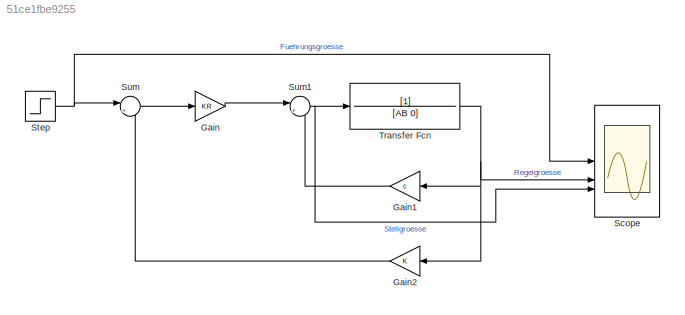
MODEL slx_51ce1fbe9255
KIND model
CONFIG AbsTol = auto
CONFIG EnableMultiTasking = off
CONFIG FixedStep = auto
CONFIG MaxStep = auto
CONFIG MinStep = auto
CONFIG RelTol = 1e-3
CONFIG SampleTimeConstraint = Unconstrained
CONFIG SolverName = VariableStepAuto
CONFIG StartTime = 0.0
CONFIG StopTime = 10.0
BLOCK [Gain] Gain
  Gain = KR
BLOCK [Gain] Gain1
  Gain = c
  NameLocation = top
BLOCK [Gain] Gain2
  NameLocation = top
BLOCK [Scope] Scope
  Floating = off
  NumInputPorts = 3
  ScopeSpecificationString = Simulink.scopes.TimeScopeBlockCfg('CurrentConfiguration', extmgr.ConfigurationSet(extmgr.Configuration('Core','General UI',true),extmgr.Configuration('Core','Source UI',true),extmgr.Configuration('Sources','WiredSimulink',true,'DataLogging',true,'DataLoggingSaveFormat','StructureWithTime'),extmgr.Configuration('Visuals','Time Domain',true,'SerializedDisplays',{struct('MinYLimReal','-10','MaxYLimRe...<+1383ch>
BLOCK [Step] Step
  After = 0
  Before = h
  SampleTime = 0
  Time = sim_time
BLOCK [Sum] Sum
  Inputs = |+-
BLOCK [Sum] Sum1
  Inputs = |+-
BLOCK [TransferFcn] Transfer Fcn
  Denominator = [AB 0]
LINE Gain1:1 -> Sum1:2
LINE Gain2:1 -> Sum:2
LINE Gain:1 -> Sum1:1
NET Step:1 -> Scope:1, Sum:1
NET Sum1:1 -> Scope:3, Transfer Fcn:1
LINE Sum:1 -> Gain:1
NET Transfer Fcn:1 -> Gain1:1, Gain2:1, Scope:2
note: NET lines group one-source signal fan-out (src -> all destinations, sorted); 1:1 wires keep LINE
